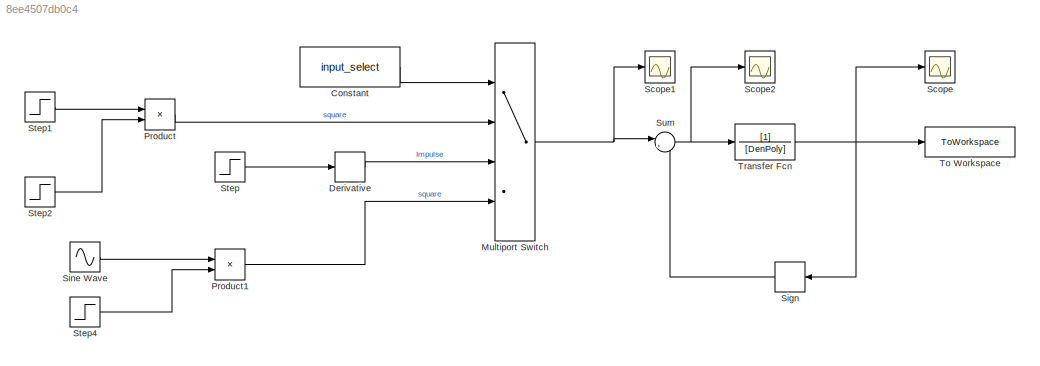
MODEL slx_8ee4507db0c4
KIND model
CONFIG AbsTol = auto
CONFIG EnableMultiTasking = off
CONFIG FixedStep = auto
CONFIG MaxStep = auto
CONFIG MinStep = auto
CONFIG RelTol = 1e-9
CONFIG SampleTimeConstraint = Unconstrained
CONFIG SolverName = VariableStepAuto
CONFIG StartTime = 0.0
CONFIG StopTime = tstop
BLOCK [Constant] Constant
  Value = input_select
BLOCK [Derivative] Derivative
BLOCK [MultiPortSwitch] Multiport Switch
  InputSameDT = off
  Ports = [4, 1]
  SaturateOnIntegerOverflow = off
BLOCK [Product] Product
  Ports = [2, 1]
BLOCK [Product] Product1
  Ports = [2, 1]
BLOCK [Scope] Scope
  Floating = off
  NumInputPorts = 1
  Ports = [1]
  ScopeSpecificationString = Simulink.scopes.TimeScopeBlockCfg('CurrentConfiguration', extmgr.ConfigurationSet(extmgr.Configuration('Core','General UI',true),extmgr.Configuration('Core','Source UI',true),extmgr.Configuration('Sources','WiredSimulink',true),extmgr.Configuration('Visuals','Time Domain',true,'SerializedDisplays',{struct('MinYLimReal','-0.000000000000000002','MaxYLimReal','0.000000000000000017','YLabelReal','','M...<+1866ch>
BLOCK [Scope] Scope1
  Floating = off
  NumInputPorts = 1
  Ports = [1]
  ScopeSpecificationString = Simulink.scopes.TimeScopeBlockCfg('CurrentConfiguration', extmgr.ConfigurationSet(extmgr.Configuration('Core','General UI',true),extmgr.Configuration('Core','Source UI',true),extmgr.Configuration('Sources','WiredSimulink',true,'DataLoggingVariableName','ScopeData1'),extmgr.Configuration('Visuals','Time Domain',true,'SerializedDisplays',{struct('MinYLimReal','-1.00000','MaxYLimReal','1.00000','YLab...<+1568ch>
BLOCK [Scope] Scope2
  Floating = off
  NumInputPorts = 1
  Ports = [1]
  ScopeSpecificationString = Simulink.scopes.TimeScopeBlockCfg('CurrentConfiguration', extmgr.ConfigurationSet(extmgr.Configuration('Core','General UI',true),extmgr.Configuration('Core','Source UI',true),extmgr.Configuration('Sources','WiredSimulink',true,'DataLoggingVariableName','ScopeData2'),extmgr.Configuration('Visuals','Time Domain',true,'SerializedDisplays',{struct('MinYLimReal','-0.000000000012','MaxYLimReal','0.00000...<+1532ch>
BLOCK [Signum] Sign
  NameLocation = top
BLOCK [Sin] Sine Wave
  Amplitude = 10^-23
  Frequency = 2*pi*10^7
  Ports = [0, 1]
  SampleTime = 0
BLOCK [Step] Step
  SampleTime = 0
  Time = 10*pi/(10^7)/10
BLOCK [Step] Step1
  After = .01
  SampleTime = 0
  Time = pi/(10^7)/10
BLOCK [Step] Step2
  After = 0
  Before = 1
  SampleTime = 0
  Time = cutoff_time
BLOCK [Step] Step4
  After = 0
  Before = 1
  SampleTime = 0
  Time = cutoff_time
BLOCK [Sum] Sum
  Inputs = |+-
  Ports = [2, 1]
BLOCK [ToWorkspace] To Workspace
  FixptAsFi = on
  MaxDataPoints = inf
  Ports = [1]
  SampleTime = -1
  SaveFormat = Timeseries
  VariableName = simout
BLOCK [TransferFcn] Transfer Fcn
  Denominator = [DenPoly]
LINE Constant:1 -> Multiport Switch:1
LINE Derivative:1 -> Multiport Switch:3
NET Multiport Switch:1 -> Scope1:1, Sum:1
LINE Product1:1 -> Multiport Switch:4
LINE Product:1 -> Multiport Switch:2
LINE Sign:1 -> Sum:2
LINE Sine Wave:1 -> Product1:1
LINE Step1:1 -> Product:1
LINE Step2:1 -> Product:2
LINE Step4:1 -> Product1:2
LINE Step:1 -> Derivative:1
NET Sum:1 -> Scope2:1, Transfer Fcn:1
NET Transfer Fcn:1 -> Scope:1, Sign:1, To Workspace:1
note: NET lines group one-source signal fan-out (src -> all destinations, sorted); 1:1 wires keep LINE
